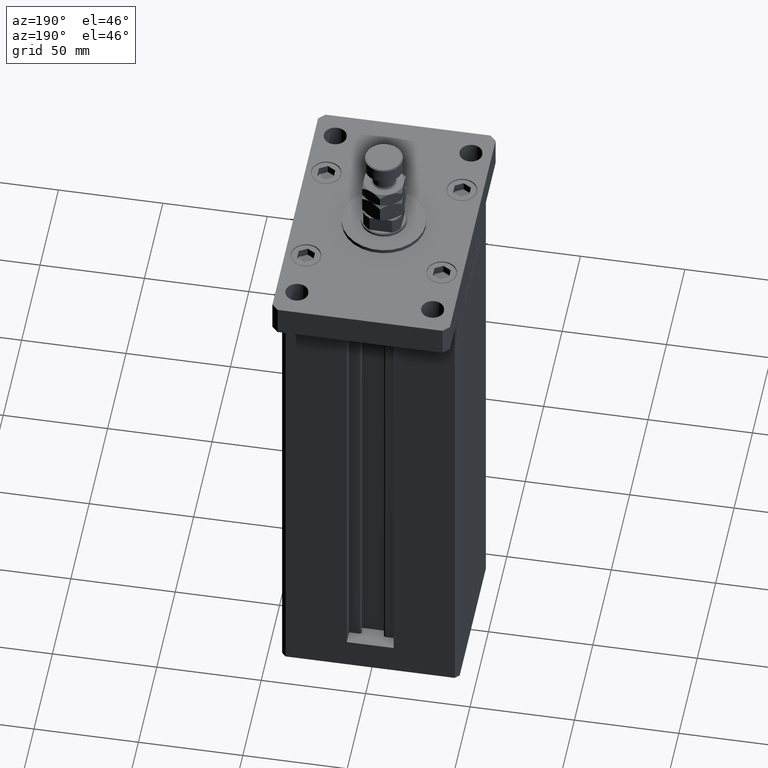
[diagram: clean part render]
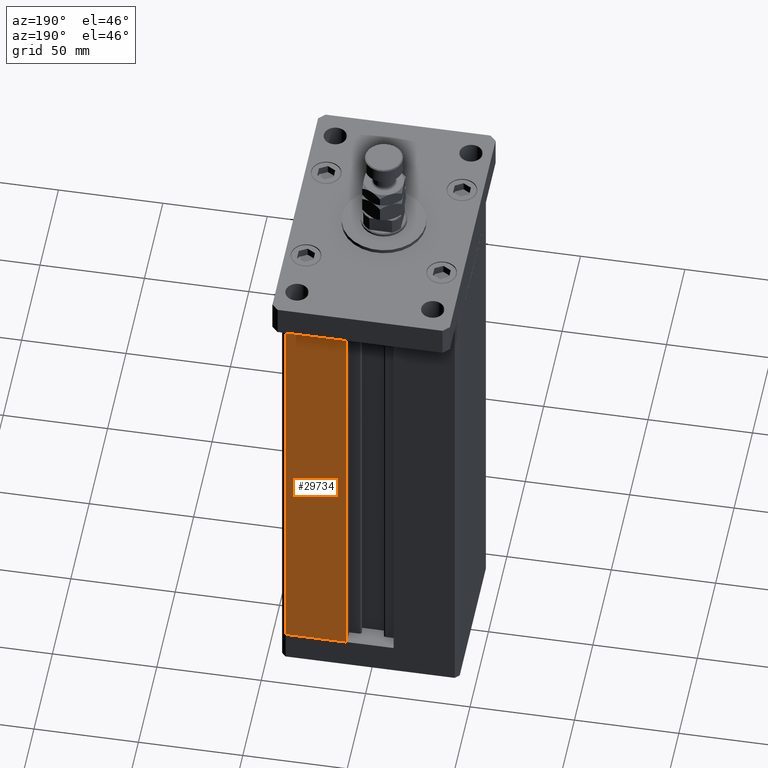
[diagram: same view with one face highlighted and labeled with its STEP entity id]
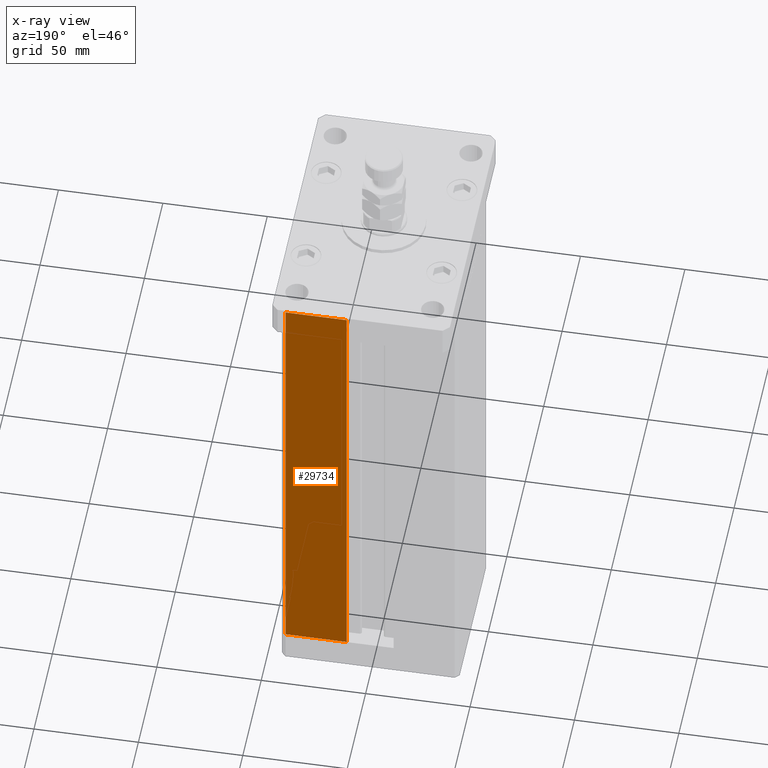
[diagram: x-ray of the same camera — body ghosted, the highlighted face saturated]
A machine part, auxiliary view. The second image highlights one B-rep face of the part: STEP entity #29734.
The next image is the same camera in x-ray: the body ghosted, the highlighted face saturated — about 0% of this face is hidden behind the body in this view.
In plain terms, the highlighted planar face has unit normal (-0, -1, 0).
Its self-contained STEP definition (entity closure, byte-faithful):
#749 = CARTESIAN_POINT ( 'NONE',  ( -11.25000000000000000, 37.50000000000000000, 218.5000000000000000 ) ) ;
#1827 = LINE ( 'NONE', #24180, #45468 ) ;
#3190 = VECTOR ( 'NONE', #10258, 1000.000000000000000 ) ;
#8278 = EDGE_CURVE ( 'NONE', #31222, #16426, #1827, .T. ) ;
#8401 = VECTOR ( 'NONE', #18535, 1000.000000000000000 ) ;
#10258 = DIRECTION ( 'NONE',  ( -0.000000000000000000, -0.000000000000000000, 1.000000000000000000 ) ) ;
#12201 = DIRECTION ( 'NONE',  ( 1.000000000000000000, -2.372271420139223824E-16, 0.000000000000000000 ) ) ;
#16426 = VERTEX_POINT ( 'NONE', #17260 ) ;
#17260 = CARTESIAN_POINT ( 'NONE',  ( 40.50000000000000000, 37.50000000000000711, 218.5000000000000000 ) ) ;
#17831 = VERTEX_POINT ( 'NONE', #32827 ) ;
#18535 = DIRECTION ( 'NONE',  ( -1.000000000000000000, 2.372271420139223331E-16, 0.000000000000000000 ) ) ;
#18888 = DIRECTION ( 'NONE',  ( -0.000000000000000000, -0.000000000000000000, -1.000000000000000000 ) ) ;
#18905 = LINE ( 'NONE', #23117, #3190 ) ;
#19697 = ORIENTED_EDGE ( 'NONE', *, *, #8278, .T. ) ;
#22485 = EDGE_LOOP ( 'NONE', ( #35545, #30074, #19697, #52318 ) ) ;
#22981 = CARTESIAN_POINT ( 'NONE',  ( 40.50000000000000000, 37.50000000000000711, 0.000000000000000000 ) ) ;
#23117 = CARTESIAN_POINT ( 'NONE',  ( 11.25000000000000000, 37.50000000000000000, 0.000000000000000000 ) ) ;
#23575 = LINE ( 'NONE', #39793, #8401 ) ;
#24180 = CARTESIAN_POINT ( 'NONE',  ( -11.25000000000000000, 37.50000000000000000, 218.5000000000000000 ) ) ;
#24759 = EDGE_CURVE ( 'NONE', #35132, #17831, #23575, .T. ) ;
#25896 = PLANE ( 'NONE',  #32526 ) ;
#28306 = CARTESIAN_POINT ( 'NONE',  ( 11.24999999999999289, 37.50000000000000000, 218.5000000000000000 ) ) ;
#29734 = ADVANCED_FACE ( 'NONE', ( #46590 ), #25896, .F. ) ;
#30074 = ORIENTED_EDGE ( 'NONE', *, *, #48985, .T. ) ;
#30461 = CARTESIAN_POINT ( 'NONE',  ( 40.50000000000000000, 37.50000000000000711, 218.5000000000000000 ) ) ;
#31222 = VERTEX_POINT ( 'NONE', #28306 ) ;
#32526 = AXIS2_PLACEMENT_3D ( 'NONE', #749, #55248, #12201 ) ;
#32827 = CARTESIAN_POINT ( 'NONE',  ( 11.25000000000000000, 37.50000000000000000, 0.000000000000000000 ) ) ;
#35132 = VERTEX_POINT ( 'NONE', #22981 ) ;
#35545 = ORIENTED_EDGE ( 'NONE', *, *, #24759, .T. ) ;
#39793 = CARTESIAN_POINT ( 'NONE',  ( -11.25000000000000000, 37.50000000000000000, 0.000000000000000000 ) ) ;
#45468 = VECTOR ( 'NONE', #49623, 1000.000000000000000 ) ;
#46590 = FACE_OUTER_BOUND ( 'NONE', #22485, .T. ) ;
#47521 = LINE ( 'NONE', #30461, #48804 ) ;
#48804 = VECTOR ( 'NONE', #18888, 1000.000000000000000 ) ;
#48985 = EDGE_CURVE ( 'NONE', #17831, #31222, #18905, .T. ) ;
#49623 = DIRECTION ( 'NONE',  ( 1.000000000000000000, 0.000000000000000000, 0.000000000000000000 ) ) ;
#52318 = ORIENTED_EDGE ( 'NONE', *, *, #53672, .T. ) ;
#53672 = EDGE_CURVE ( 'NONE', #16426, #35132, #47521, .T. ) ;
#55248 = DIRECTION ( 'NONE',  ( -2.372271420139223824E-16, -1.000000000000000000, 0.000000000000000000 ) ) ;